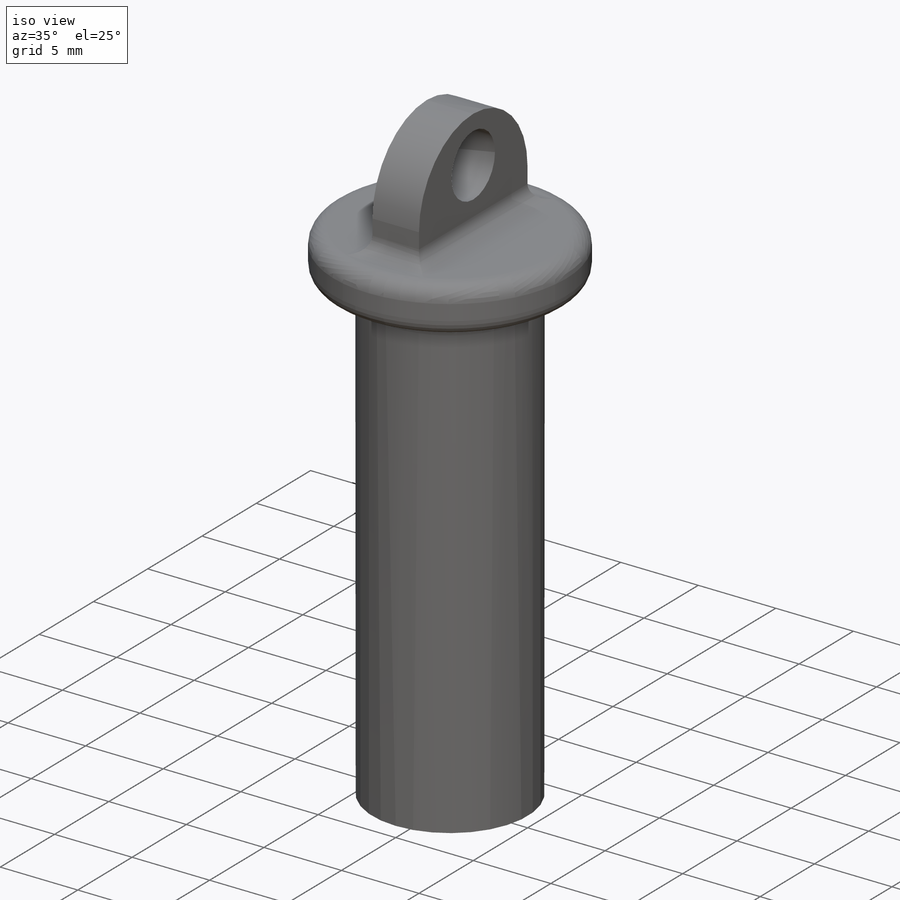
[diagram: iso view]
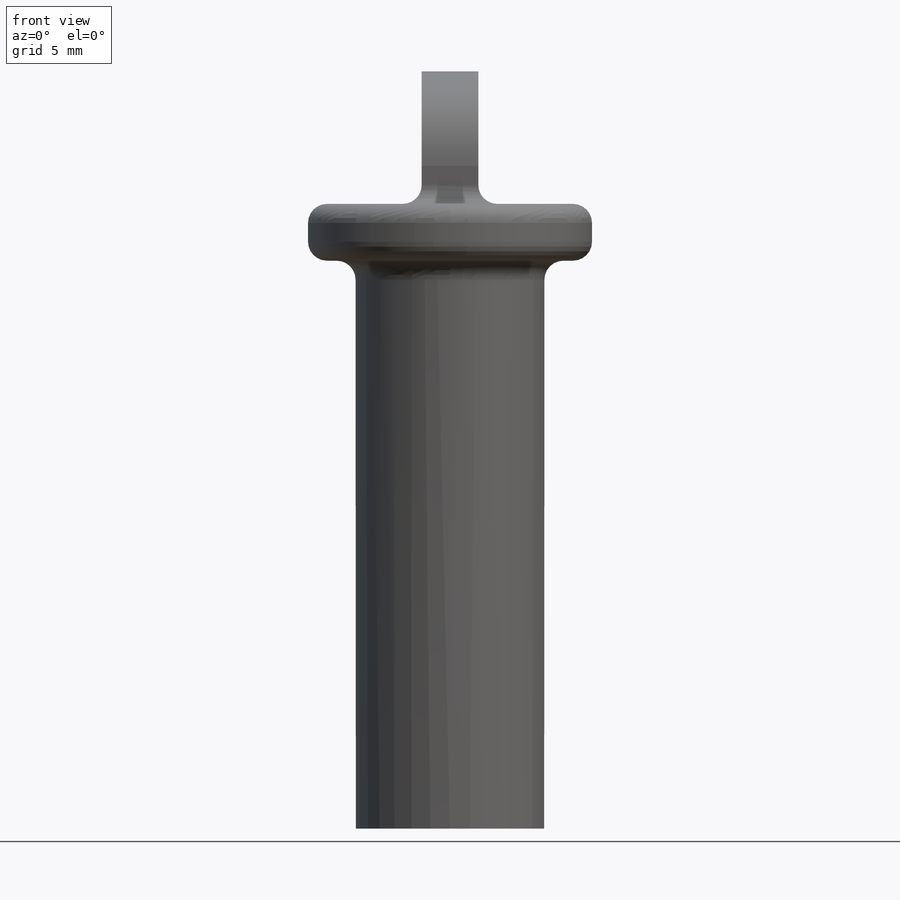
[diagram: front view]
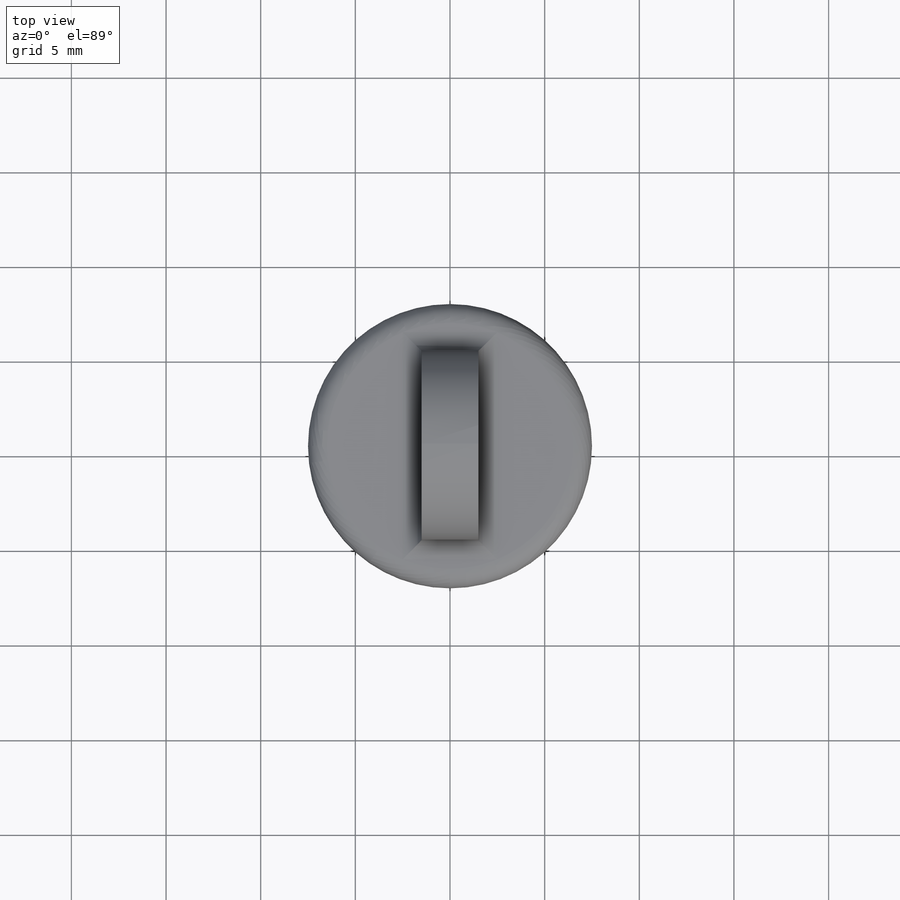
[diagram: top view]
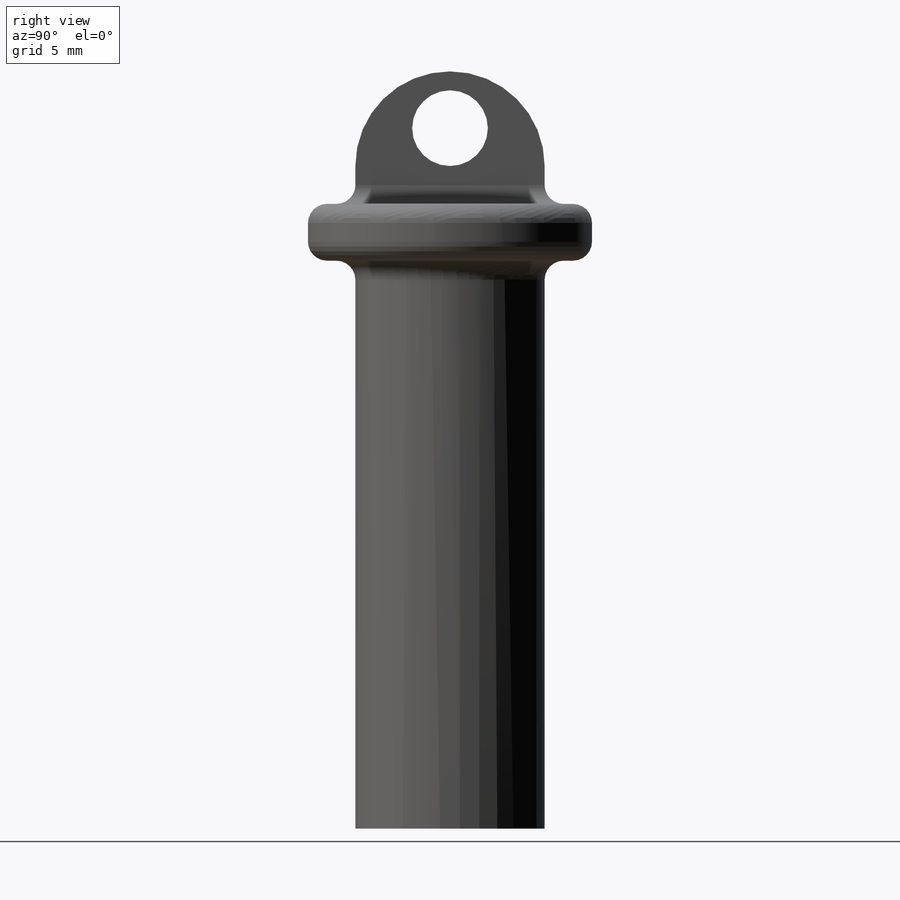
[diagram: right view]
SOLIDWORKS PART (.sldprt)
format: sldprt  version: not decoded by parser v0  size: 190,976 bytes
history: native  units: mm
features: sketch x4, extrude x3, fillet x2, material x1, cut_extrude x1 (+13 scaffold rows collapsed)
feature tree (24):
  scaffold x13  (default folders/planes/origin — collapsed)
  material  "Material <not specified>"
  sketch  "Sketch1"  dims[D1=10.0mm]
  extrude  "Boss-Extrude1"  Depth=30mm
  sketch  "Sketch4"  dims[D1=15.0mm]
  extrude  "Boss-Extrude3"  Depth=3mm
  sketch  "Sketch5"  dims[D1=10.0mm D2=3.0mm]
  extrude  "Boss-Extrude4"  Depth=7mm
  sketch  "Sketch6"  dims[D1=4.0mm D2=3.0mm]
  cut_extrude  "Cut-Extrude2"  Depth=7mm
  fillet  "Fillet1"  Radius=1mm
  fillet  "Fillet2"  Radius=5mm
decode coverage: 10 of 10 modeling features carry decoded parameters
note: suppression state not decoded; provenance and decode notes live in map.json
